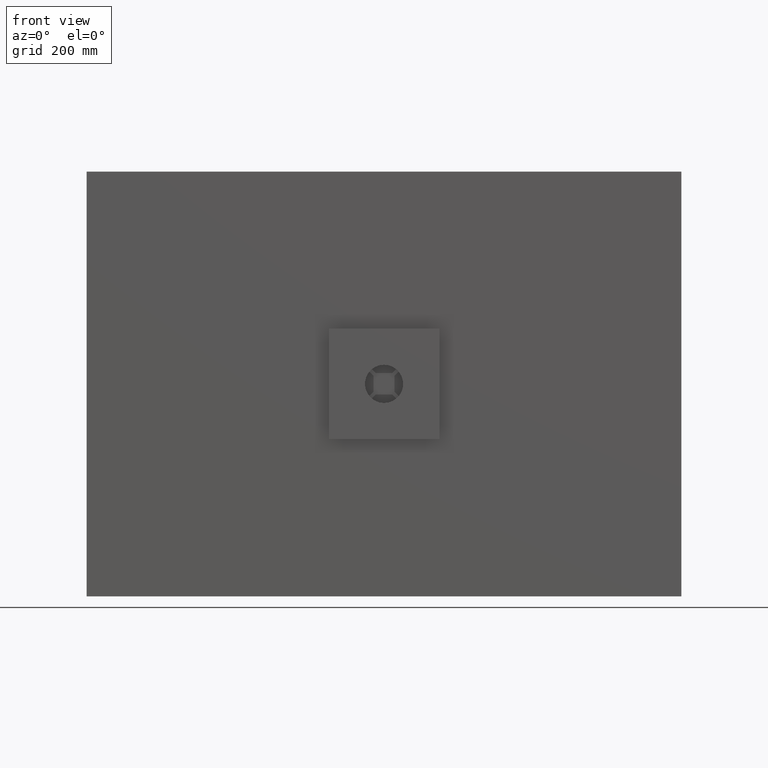
[diagram: clean part render]
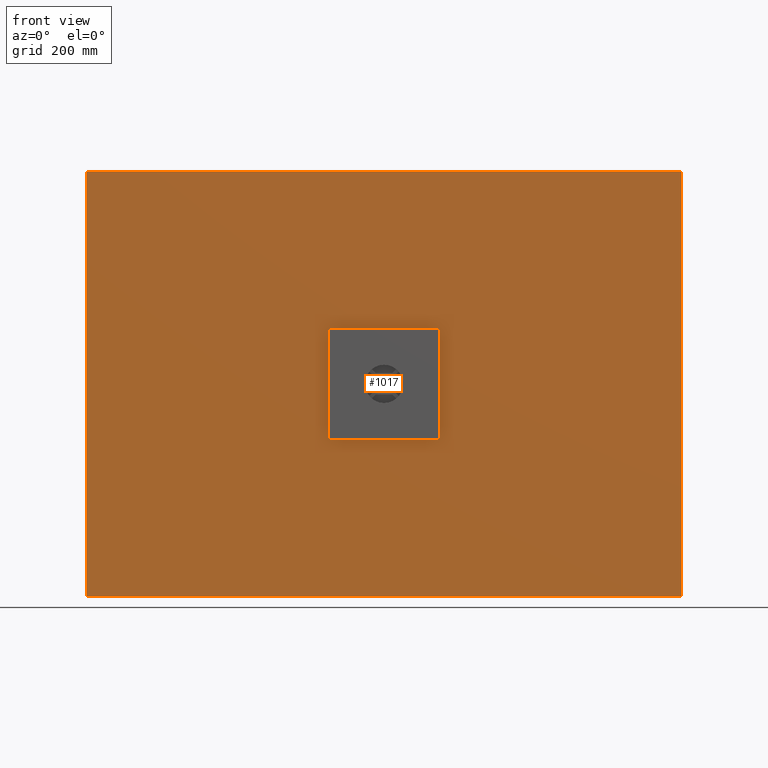
[diagram: same view with one face highlighted and labeled with its STEP entity id]
A machine part, front view. The second image highlights one B-rep face of the part: STEP entity #1017.
In plain terms, the highlighted planar face has unit normal (0, 1, 0).
Its self-contained STEP definition (entity closure, byte-faithful):
#48 = ORIENTED_EDGE ( 'NONE', *, *, #1995, .T. ) ;
#53 = VECTOR ( 'NONE', #534, 1000.000000000000000 ) ;
#62 = LINE ( 'NONE', #681, #795 ) ;
#85 = EDGE_CURVE ( 'NONE', #1369, #1648, #2710, .T. ) ;
#112 = CARTESIAN_POINT ( 'NONE',  ( 77.50000000000056800, 0.0000000000000000000, -77.49999999999990100 ) ) ;
#180 = ORIENTED_EDGE ( 'NONE', *, *, #3169, .F. ) ;
#231 = ORIENTED_EDGE ( 'NONE', *, *, #2001, .T. ) ;
#255 = EDGE_CURVE ( 'NONE', #2289, #887, #1239, .T. ) ;
#276 = ORIENTED_EDGE ( 'NONE', *, *, #2845, .T. ) ;
#318 = DIRECTION ( 'NONE',  ( 0.0000000000000000000, 0.0000000000000000000, -1.000000000000000000 ) ) ;
#342 = DIRECTION ( 'NONE',  ( 0.0000000000000000000, 1.000000000000000000, -0.0000000000000000000 ) ) ;
#361 = CARTESIAN_POINT ( 'NONE',  ( -77.50000000000056800, 0.0000000000000000000, 77.50000000000024200 ) ) ;
#401 = ORIENTED_EDGE ( 'NONE', *, *, #1174, .T. ) ;
#424 = DIRECTION ( 'NONE',  ( 0.0000000000000000000, 0.0000000000000000000, 1.000000000000000000 ) ) ;
#432 = DIRECTION ( 'NONE',  ( 0.0000000000000000000, 1.000000000000000000, 0.0000000000000000000 ) ) ;
#456 = CARTESIAN_POINT ( 'NONE',  ( -699.9999999999993200, 0.0000000000000000000, 500.0000000000000000 ) ) ;
#480 = CARTESIAN_POINT ( 'NONE',  ( -699.9999999999993200, 0.0000000000000000000, -499.9999999999999400 ) ) ;
#522 = CARTESIAN_POINT ( 'NONE',  ( -80.00000000000007100, 0.0000000000000000000, 77.50000000000024200 ) ) ;
#534 = DIRECTION ( 'NONE',  ( -3.581364595565019400E-016, -0.0000000000000000000, -1.000000000000000000 ) ) ;
#549 = DIRECTION ( 'NONE',  ( 0.0000000000000000000, 1.000000000000000000, 0.0000000000000000000 ) ) ;
#569 = CARTESIAN_POINT ( 'NONE',  ( 77.50000000000056800, 0.0000000000000000000, 77.50000000000024200 ) ) ;
#606 = DIRECTION ( 'NONE',  ( 1.000000000000000000, 0.0000000000000000000, 0.0000000000000000000 ) ) ;
#681 = CARTESIAN_POINT ( 'NONE',  ( -77.50000000000056800, 0.0000000000000000000, 80.00000000000012800 ) ) ;
#715 = ORIENTED_EDGE ( 'NONE', *, *, #85, .T. ) ;
#756 = DIRECTION ( 'NONE',  ( 1.000000000000000000, 0.0000000000000000000, -8.953411488912548500E-017 ) ) ;
#795 = VECTOR ( 'NONE', #756, 1000.000000000000000 ) ;
#813 = ORIENTED_EDGE ( 'NONE', *, *, #1402, .T. ) ;
#857 = EDGE_LOOP ( 'NONE', ( #813, #231, #401, #3288, #2253, #715, #276, #48 ) ) ;
#858 = DIRECTION ( 'NONE',  ( -3.330669073875470600E-016, -0.0000000000000000000, -1.000000000000000000 ) ) ;
#887 = VERTEX_POINT ( 'NONE', #1746 ) ;
#908 = AXIS2_PLACEMENT_3D ( 'NONE', #2925, #991, #1013 ) ;
#920 = ORIENTED_EDGE ( 'NONE', *, *, #255, .F. ) ;
#930 = ORIENTED_EDGE ( 'NONE', *, *, #2702, .F. ) ;
#938 = CIRCLE ( 'NONE', #2206, 2.500000000000002200 ) ;
#942 = VECTOR ( 'NONE', #606, 1000.000000000000000 ) ;
#974 = CARTESIAN_POINT ( 'NONE',  ( 699.9999999999993200, 0.0000000000000000000, -499.9999999999999400 ) ) ;
#991 = DIRECTION ( 'NONE',  ( 0.0000000000000000000, 1.000000000000000000, 0.0000000000000000000 ) ) ;
#1013 = DIRECTION ( 'NONE',  ( 0.0000000000000000000, 0.0000000000000000000, 1.000000000000000000 ) ) ;
#1014 = LINE ( 'NONE', #1079, #3083 ) ;
#1017 = ADVANCED_FACE ( 'NONE', ( #1948, #3224 ), #2989, .F. ) ;
#1062 = CARTESIAN_POINT ( 'NONE',  ( -80.00000000000007100, 0.0000000000000000000, -77.49999999999990100 ) ) ;
#1079 = CARTESIAN_POINT ( 'NONE',  ( -80.00000000000007100, 0.0000000000000000000, -77.49999999999990100 ) ) ;
#1120 = CARTESIAN_POINT ( 'NONE',  ( 80.00000000000007100, 0.0000000000000000000, 77.50000000000024200 ) ) ;
#1144 = VERTEX_POINT ( 'NONE', #3125 ) ;
#1174 = EDGE_CURVE ( 'NONE', #2476, #1144, #2184, .T. ) ;
#1239 = LINE ( 'NONE', #1724, #942 ) ;
#1254 = AXIS2_PLACEMENT_3D ( 'NONE', #569, #549, #1363 ) ;
#1278 = DIRECTION ( 'NONE',  ( 0.0000000000000000000, 0.0000000000000000000, 1.000000000000000000 ) ) ;
#1333 = LINE ( 'NONE', #974, #2895 ) ;
#1363 = DIRECTION ( 'NONE',  ( 0.0000000000000000000, 0.0000000000000000000, 1.000000000000000000 ) ) ;
#1369 = VERTEX_POINT ( 'NONE', #1789 ) ;
#1402 = EDGE_CURVE ( 'NONE', #2159, #1651, #62, .T. ) ;
#1477 = VECTOR ( 'NONE', #1949, 1000.000000000000000 ) ;
#1648 = VERTEX_POINT ( 'NONE', #1062 ) ;
#1651 = VERTEX_POINT ( 'NONE', #2673 ) ;
#1673 = CARTESIAN_POINT ( 'NONE',  ( 77.50000000000056800, 0.0000000000000000000, -79.99999999999984400 ) ) ;
#1724 = CARTESIAN_POINT ( 'NONE',  ( -699.9999999999993200, 0.0000000000000000000, 500.0000000000000000 ) ) ;
#1728 = VERTEX_POINT ( 'NONE', #1673 ) ;
#1730 = LINE ( 'NONE', #2614, #2533 ) ;
#1746 = CARTESIAN_POINT ( 'NONE',  ( 700.0000000000010200, 0.0000000000000000000, 500.0000000000000000 ) ) ;
#1751 = EDGE_CURVE ( 'NONE', #1728, #1369, #1730, .T. ) ;
#1789 = CARTESIAN_POINT ( 'NONE',  ( -77.50000000000056800, 0.0000000000000000000, -79.99999999999984400 ) ) ;
#1816 = VERTEX_POINT ( 'NONE', #2409 ) ;
#1900 = DIRECTION ( 'NONE',  ( 0.0000000000000000000, -0.0000000000000000000, 1.000000000000000000 ) ) ;
#1948 = FACE_BOUND ( 'NONE', #857, .T. ) ;
#1949 = DIRECTION ( 'NONE',  ( 1.110223024625156800E-016, 0.0000000000000000000, 1.000000000000000000 ) ) ;
#1986 = DIRECTION ( 'NONE',  ( 0.0000000000000000000, 1.000000000000000000, 0.0000000000000000000 ) ) ;
#1995 = EDGE_CURVE ( 'NONE', #3205, #2159, #938, .T. ) ;
#1997 = EDGE_CURVE ( 'NONE', #2696, #2289, #3220, .T. ) ;
#2001 = EDGE_CURVE ( 'NONE', #1651, #2476, #2029, .T. ) ;
#2029 = CIRCLE ( 'NONE', #1254, 2.500000000000002200 ) ;
#2159 = VERTEX_POINT ( 'NONE', #2778 ) ;
#2184 = LINE ( 'NONE', #2479, #53 ) ;
#2206 = AXIS2_PLACEMENT_3D ( 'NONE', #361, #432, #424 ) ;
#2253 = ORIENTED_EDGE ( 'NONE', *, *, #1751, .T. ) ;
#2289 = VERTEX_POINT ( 'NONE', #456 ) ;
#2332 = CARTESIAN_POINT ( 'NONE',  ( -699.9999999999993200, 0.0000000000000000000, -499.9999999999999400 ) ) ;
#2409 = CARTESIAN_POINT ( 'NONE',  ( 699.9999999999993200, 0.0000000000000000000, -499.9999999999999400 ) ) ;
#2433 = EDGE_LOOP ( 'NONE', ( #2499, #930, #180, #920 ) ) ;
#2464 = CARTESIAN_POINT ( 'NONE',  ( -699.9999999999993200, 0.0000000000000000000, 500.0000000000000000 ) ) ;
#2476 = VERTEX_POINT ( 'NONE', #1120 ) ;
#2479 = CARTESIAN_POINT ( 'NONE',  ( 80.00000000000007100, 0.0000000000000000000, -77.49999999999990100 ) ) ;
#2499 = ORIENTED_EDGE ( 'NONE', *, *, #1997, .F. ) ;
#2533 = VECTOR ( 'NONE', #2586, 1000.000000000000000 ) ;
#2537 = EDGE_CURVE ( 'NONE', #1144, #1728, #2933, .T. ) ;
#2586 = DIRECTION ( 'NONE',  ( -1.000000000000000000, -0.0000000000000000000, 1.790682297782510200E-016 ) ) ;
#2614 = CARTESIAN_POINT ( 'NONE',  ( -77.50000000000056800, 0.0000000000000000000, -79.99999999999984400 ) ) ;
#2650 = AXIS2_PLACEMENT_3D ( 'NONE', #2464, #1986, #1900 ) ;
#2654 = VECTOR ( 'NONE', #3017, 1000.000000000000000 ) ;
#2673 = CARTESIAN_POINT ( 'NONE',  ( 77.50000000000056800, 0.0000000000000000000, 80.00000000000012800 ) ) ;
#2696 = VERTEX_POINT ( 'NONE', #2332 ) ;
#2702 = EDGE_CURVE ( 'NONE', #1816, #2696, #3036, .T. ) ;
#2710 = CIRCLE ( 'NONE', #908, 2.500000000000002200 ) ;
#2754 = CARTESIAN_POINT ( 'NONE',  ( -699.9999999999993200, 0.0000000000000000000, -499.9999999999999400 ) ) ;
#2778 = CARTESIAN_POINT ( 'NONE',  ( -77.50000000000056800, 0.0000000000000000000, 80.00000000000012800 ) ) ;
#2845 = EDGE_CURVE ( 'NONE', #1648, #3205, #1014, .T. ) ;
#2884 = AXIS2_PLACEMENT_3D ( 'NONE', #112, #342, #318 ) ;
#2895 = VECTOR ( 'NONE', #858, 1000.000000000000000 ) ;
#2925 = CARTESIAN_POINT ( 'NONE',  ( -77.50000000000056800, 0.0000000000000000000, -77.49999999999990100 ) ) ;
#2933 = CIRCLE ( 'NONE', #2884, 2.500000000000002200 ) ;
#2989 = PLANE ( 'NONE',  #2650 ) ;
#3017 = DIRECTION ( 'NONE',  ( -1.000000000000000000, -0.0000000000000000000, -0.0000000000000000000 ) ) ;
#3036 = LINE ( 'NONE', #2754, #2654 ) ;
#3083 = VECTOR ( 'NONE', #1278, 1000.000000000000000 ) ;
#3125 = CARTESIAN_POINT ( 'NONE',  ( 80.00000000000007100, 0.0000000000000000000, -77.49999999999990100 ) ) ;
#3169 = EDGE_CURVE ( 'NONE', #887, #1816, #1333, .T. ) ;
#3205 = VERTEX_POINT ( 'NONE', #522 ) ;
#3220 = LINE ( 'NONE', #480, #1477 ) ;
#3224 = FACE_OUTER_BOUND ( 'NONE', #2433, .T. ) ;
#3288 = ORIENTED_EDGE ( 'NONE', *, *, #2537, .T. ) ;